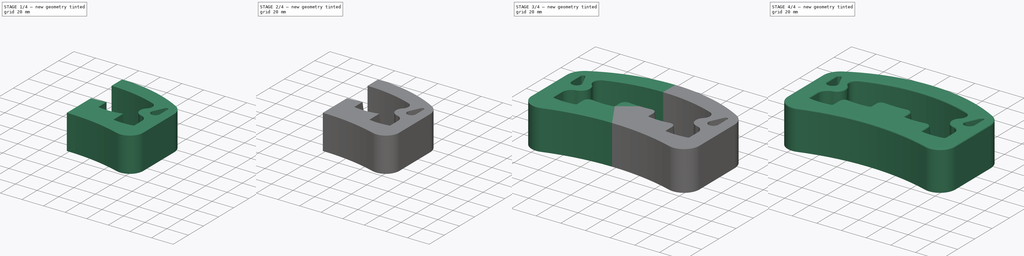
[diagram: build sequence overview — one tinted view per stage of 4, left to right]
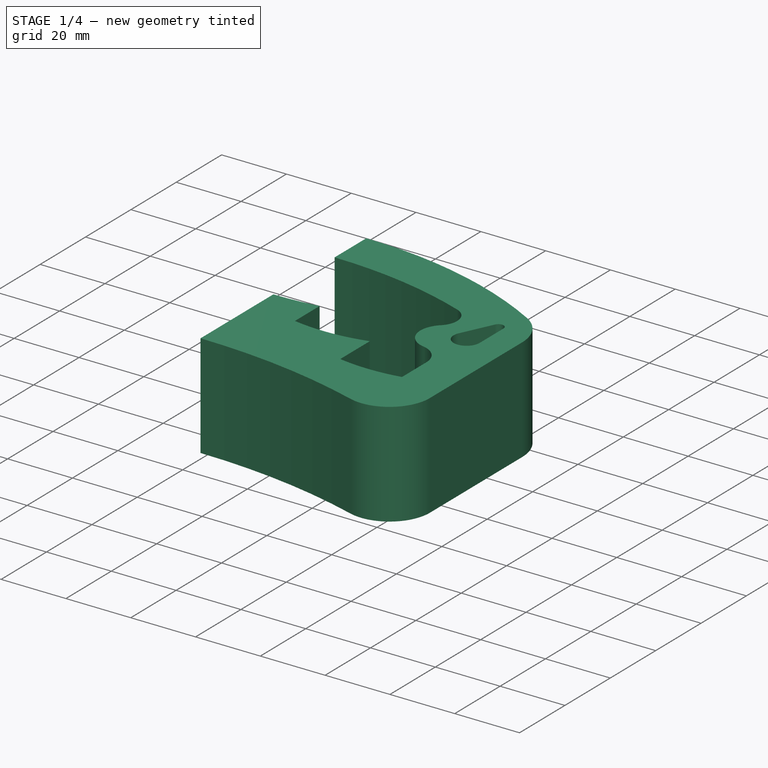
[diagram: stage 1 of 4 — iso view after this stage's code; geometry added in this stage tinted green]
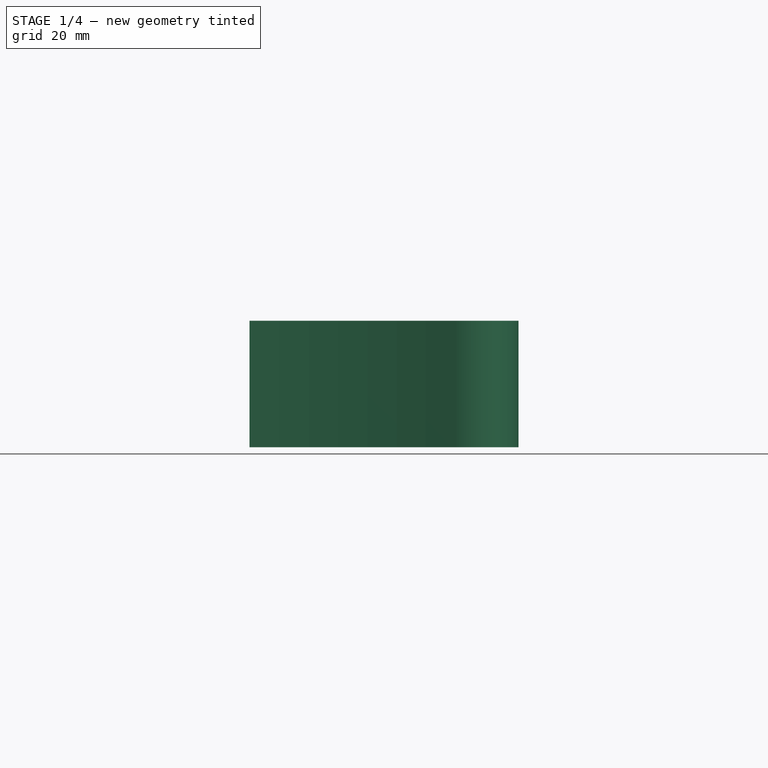
[diagram: stage 1 of 4 — front view after this stage's code; geometry added in this stage tinted green]
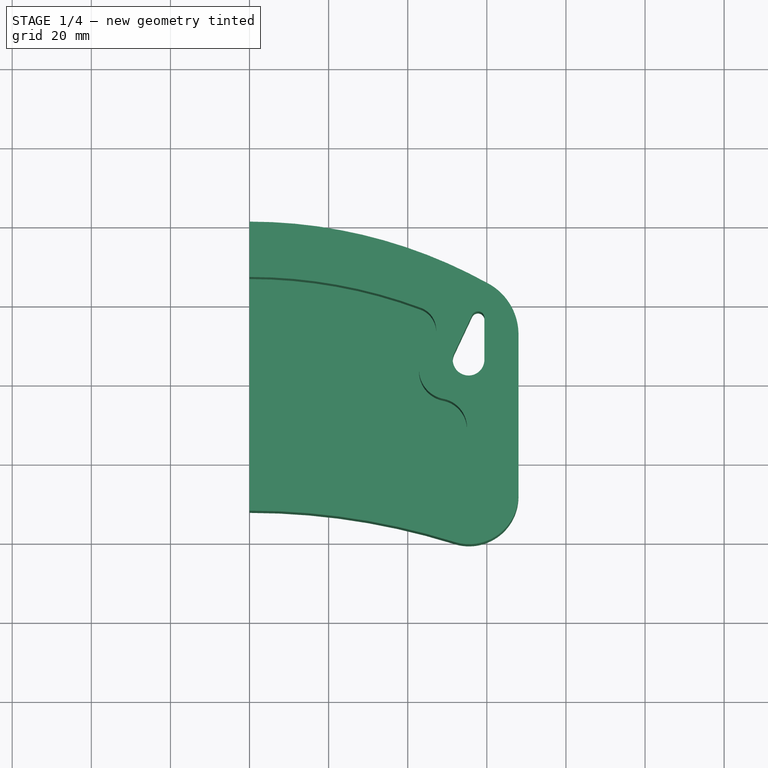
[diagram: stage 1 of 4 — top view after this stage's code; geometry added in this stage tinted green]
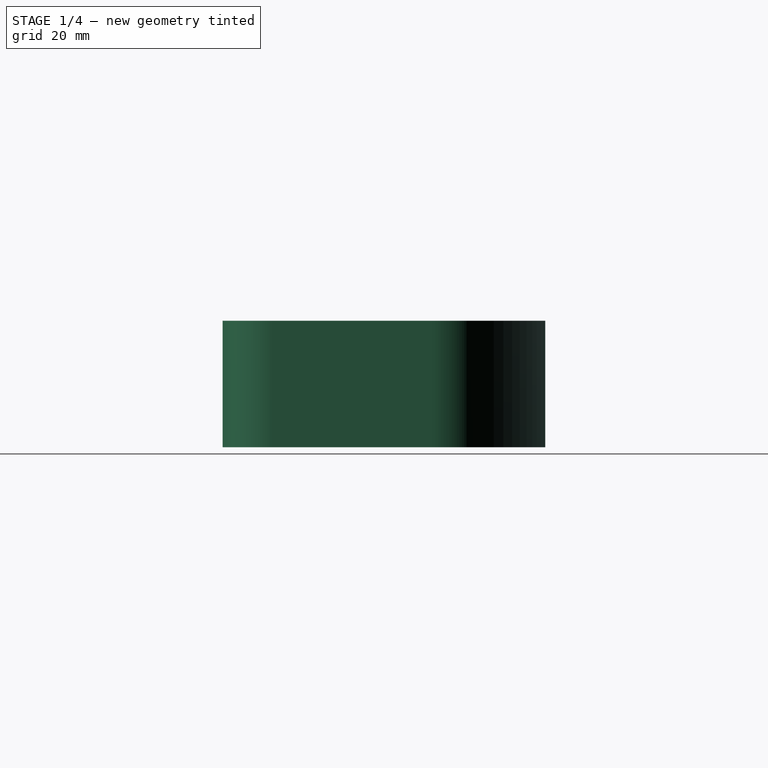
[diagram: stage 1 of 4 — right view after this stage's code; geometry added in this stage tinted green]
FCSTD DOCUMENT  (FreeCAD 1.1R39380 (Git))
Label: main de fer
License: All rights reserved
LicenseURL: https://en.wikipedia.org/wiki/All_rights_reserved
objects: PartDesign::Fillet×4, PartDesign::Draft×3, Sketcher::SketchObject×2, PartDesign::Pad×1, PartDesign::Pocket×1, PartDesign::Mirrored×1, PartDesign::Body×1
note: 34 computed .brp shape members not serialized (recipe doc carries the construction recipe); baked Part::Feature solids carry a one-line shape summary decoded from their .brp

FEATURE [Sketcher::SketchObject] Sketch
  ArcFitTolerance = 1e-06
  AttachmentSupport = -> [XY_Plane]
  ExternalTypes = [0]
  FullyConstrained = false
  MakeInternals = false
  MapMode = 5
  sketch-geometry (12):
    g0: LineSegment StartX=68 StartY=11.9198 StartZ=0 EndX=68 EndY=52.4848 EndZ=0
    g1: ArcOfCircle CenterX=2.13e-14 CenterY=-165.714 CenterZ=0 NormalX=0 NormalY=0 NormalZ=1 AngleXU=0 Radius=173.617 StartAngle=1.26791 EndAngle=1.5708
    g2: ArcOfCircle CenterX=0 CenterY=-43.203 CenterZ=0 NormalX=0 NormalY=0 NormalZ=1 AngleXU=0 Radius=124.203 StartAngle=1.06214 EndAngle=1.5708
    g3: ArcOfCircle CenterX=55.5117 CenterY=11.9198 CenterZ=0 NormalX=0 NormalY=0 NormalZ=1 AngleXU=0 Radius=12.4883 StartAngle=4.4095 EndAngle=6.28319
    g4: ArcOfCircle CenterX=53.3545 CenterY=52.4848 CenterZ=0 NormalX=0 NormalY=0 NormalZ=1 AngleXU=0 Radius=14.6455 StartAngle=0 EndAngle=1.06214
    g5: LineSegment StartX=56.2781 StartY=57.3751 StartZ=0 EndX=51.7626 EndY=47.7982 EndZ=0
    g6: LineSegment StartX=59.3877 StartY=56.6788 StartZ=0 EndX=59.3877 EndY=46.0908 EndZ=0
    g7: ArcOfCircle CenterX=55.384 CenterY=46.0908 CenterZ=0 NormalX=0 NormalY=0 NormalZ=1 AngleXU=0 Radius=4.00371 StartAngle=2.701 EndAngle=6.28319
    g8: ArcOfCircle CenterX=57.7549 CenterY=56.6788 CenterZ=0 NormalX=0 NormalY=0 NormalZ=1 AngleXU=0 Radius=1.63275 StartAngle=-1.8e-15 EndAngle=2.701
    g9: LineSegment [constr] StartX=8.64254 StartY=81 StartZ=0 EndX=-10.5317 EndY=81 EndZ=0
    g10: LineSegment [constr] StartX=-3.87588 StartY=7.90337 StartZ=0 EndX=5.636 EndY=7.90337 EndZ=0
    g11: LineSegment StartX=7.6e-15 StartY=81 StartZ=0 EndX=7.6e-15 EndY=7.90337 EndZ=0
  constraints (21):
    c: Vertical(g0)
    c: PointOnObject(g1,g-1)
    c: PointOnObject(g1,g-2)
    c: Tangent(g4,g2) = -1.5708
    c: Tangent(g4,g0) = -1.5708
    c: Tangent(g3,g0) = -1.5708
    c: Tangent(g3,g1) = 1.5708
    c: Vertical(g6)
    c: Tangent(g8,g5) = -1.5708
    c: Tangent(g7,g5) = -1.5708
    c: Tangent(g7,g6) = 1.5708
    c: Tangent(g8,g6) = 1.5708
    c: Distance(g-2,g0) = 68
    c: DistanceY(g-1,g2) = 81
    c: Horizontal(g9)
    c: Tangent(g2,g9) = -1.5708
    c: Horizontal(g10)
    c: Tangent(g1,g10) = 1.5708
    c: Coincident(g11,g2)
    c: Coincident(g11,g1)
    c: Vertical(g11)
FEATURE [PartDesign::Pad] Pad
  Direction = (0,0,1)
  Length = 32
  Length2 = 10
  Profile = -> Sketch
  ReferenceAxis = -> Sketch [N_Axis]
  Suppressed = false
  Type = 0
FEATURE [Sketcher::SketchObject] Sketch001
  ArcFitTolerance = 1e-06
  AttachmentOffset = pos=(0,0,32) rot=(0,0,1;0rad)
  AttachmentSupport = -> [XY_Plane]
  ExternalGeometry = -> [Sketch]
  ExternalTypes = [0]
  FullyConstrained = false
  MakeInternals = false
  MapMode = 5
  Placement = pos=(0,0,32) rot=(0,0,1;0rad)
  expr: .AttachmentOffset.Base.z = Pad.Length
  sketch-geometry (13):
    g0: ArcOfCircle CenterX=0 CenterY=-57.203 CenterZ=0 NormalX=0 NormalY=0 NormalZ=1 AngleXU=0 Radius=124.203 StartAngle=1.21485 EndAngle=1.5708
    g1: LineSegment [constr] StartX=-8.37039 StartY=67 StartZ=0 EndX=9.31481 EndY=67 EndZ=0
    g2: ArcOfCircle CenterX=22.7344 CenterY=80.8834 CenterZ=0 NormalX=0 NormalY=0 NormalZ=1 AngleXU=0 Radius=51.6001 StartAngle=4.53423 EndAngle=4.9734
    g3: ArcOfCircle CenterX=45.087 CenterY=69.7379 CenterZ=0 NormalX=0 NormalY=0 NormalZ=1 AngleXU=0 Radius=52.5212 StartAngle=4.53947 EndAngle=4.90227
    g4: ArcOfCircle CenterX=0 CenterY=133.057 CenterZ=0 NormalX=0 NormalY=0 NormalZ=1 AngleXU=0 Radius=93.0572 StartAngle=4.71239 EndAngle=4.85895
    g5: LineSegment StartX=13.59 StartY=30.1 StartZ=0 EndX=13.59 EndY=40.9977 EndZ=0
    g6: LineSegment StartX=36.05 StartY=18 StartZ=0 EndX=36.05 EndY=31.031 EndZ=0
    g7: LineSegment [constr] StartX=-4.82226 StartY=40 StartZ=0 EndX=3.66042 EndY=40 EndZ=0
    g8: ArcOfCircle CenterX=50.4088 CenterY=43.6173 CenterZ=0 NormalX=0 NormalY=0 NormalZ=1 AngleXU=0 Radius=7.55726 StartAngle=2.31789 EndAngle=4.51913
    g9: ArcOfCircle CenterX=41.1856 CenterY=53.5756 CenterZ=0 NormalX=0 NormalY=0 NormalZ=1 AngleXU=0 Radius=6.0161 StartAngle=5.45948 EndAngle=7.49803
    g10: ArcOfCircle CenterX=47.5209 CenterY=28.8608 CenterZ=0 NormalX=0 NormalY=0 NormalZ=1 AngleXU=0 Radius=7.47911 StartAngle=0 EndAngle=1.37753
    g11: LineSegment StartX=55 StartY=28.8608 StartZ=0 EndX=55 EndY=18.1607 EndZ=0
    g12: LineSegment StartX=0 StartY=67 StartZ=0 EndX=0 EndY=40 EndZ=0
  constraints (29):
    c: PointOnObject(g0,g-2)
    c: Equal(g0,g-3)
    c: Horizontal(g1)
    c: Tangent(g1,g0)
    c: PointOnObject(g4,g-2)
    c: Vertical(g5)
    c: Vertical(g6)
    c: Horizontal(g7)
    c: Distance(g4,g-1) = 40
    c: Tangent(g4,g7) = -1.5708
    c: DistanceY(g0,g-3) = 14
    c: Tangent(g8,g9) = 1.5708
    c: Tangent(g0,g9) = -1.5708
    c: Tangent(g10,g8) = 1.5708
    c: Vertical(g11)
    c: Coincident(g12,g0)
    c: Coincident(g12,g4)
    c: Distance(g2,g-1) = 30.1
    c: Distance(g3,g-1) = 18
    c: Tangent(g11,g10) = 1.5708
    c: DistanceX(g10) = 55
    c: DistanceX(g6) = 36.05
    c: DistanceX(g5) = 13.59
    c: Coincident(g3,g11)
    c: Coincident(g3,g6)
    c: Coincident(g2,g6)
    c: Coincident(g2,g5)
    c: Coincident(g4,g5)
    c: PointOnObject(g0,g-2)
FEATURE [PartDesign::Pocket] Pocket
  BaseFeature = -> Pad
  Direction = (0,0,-1)
  Length = 30
  Length2 = 5
  Profile = -> Sketch001
  ReferenceAxis = -> Sketch001 [N_Axis]
  Suppressed = false
  Type = 0
  expr: Length = 30 mm
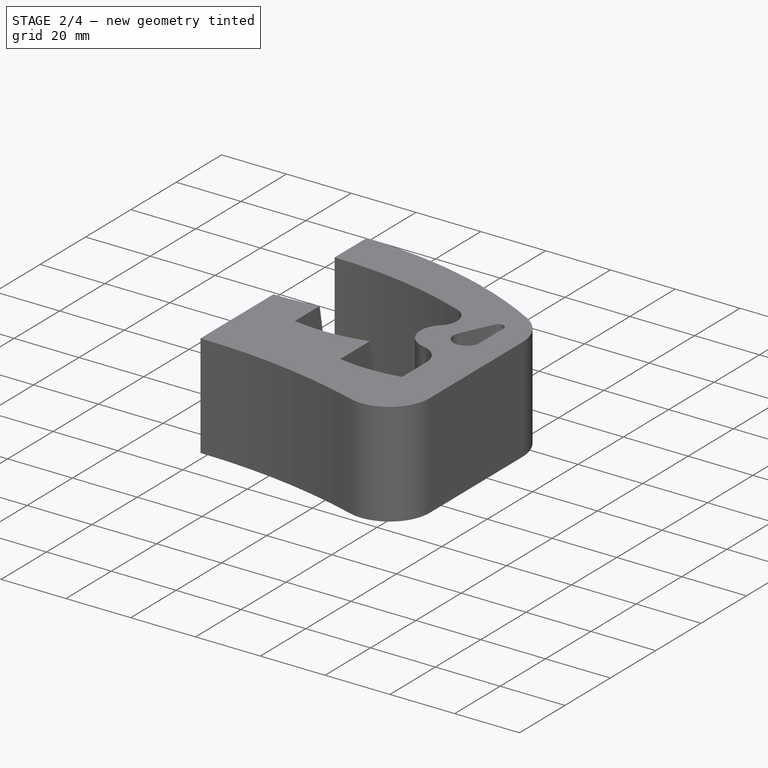
[diagram: stage 2 of 4 — iso view after this stage's code; geometry added in this stage tinted green]
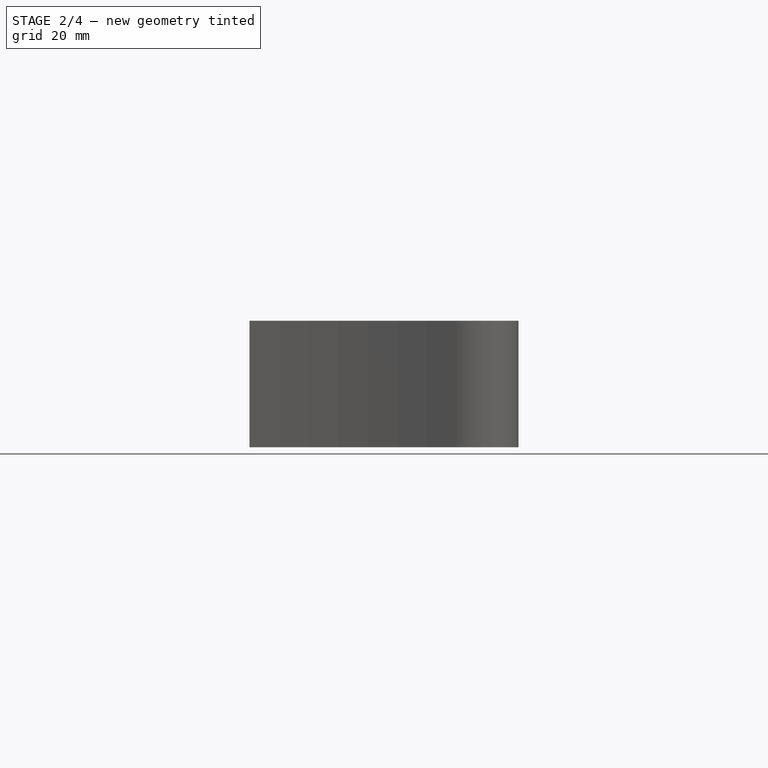
[diagram: stage 2 of 4 — front view after this stage's code; geometry added in this stage tinted green]
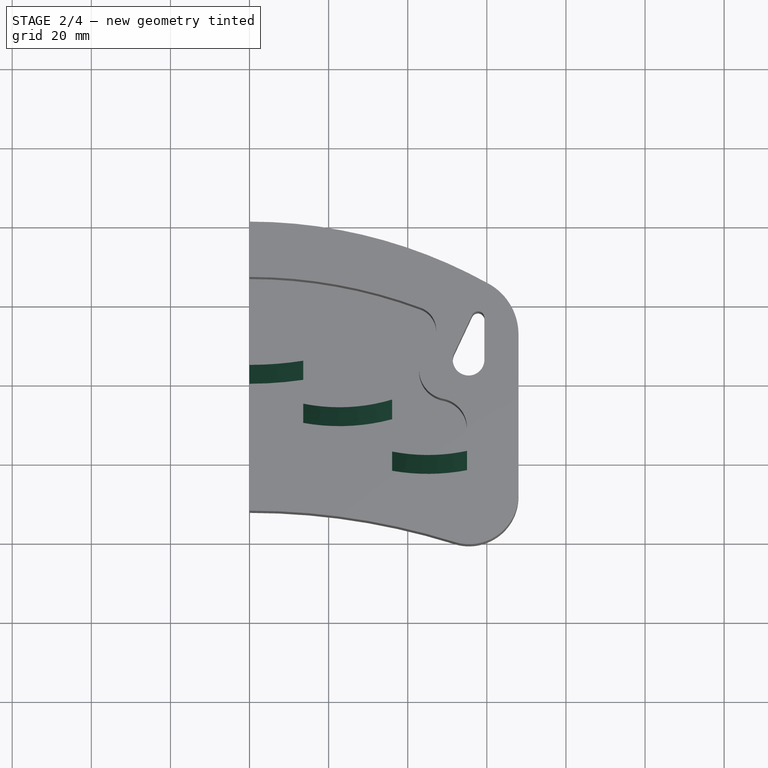
[diagram: stage 2 of 4 — top view after this stage's code; geometry added in this stage tinted green]
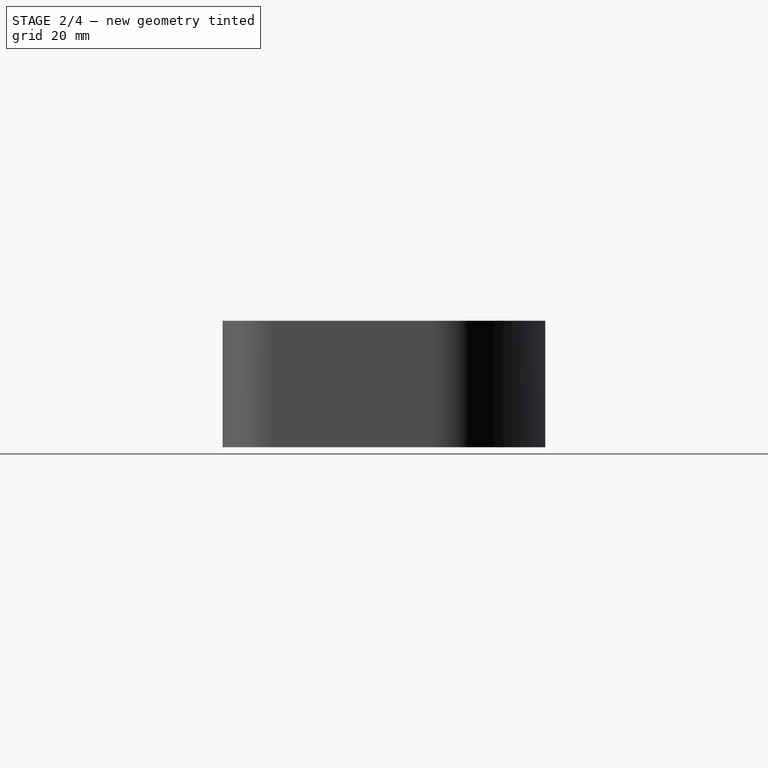
[diagram: stage 2 of 4 — right view after this stage's code; geometry added in this stage tinted green]
FEATURE [PartDesign::Draft] Draft
  Angle = 10
  Base = -> Pocket [Face17]
  BaseFeature = -> Pocket
  Refine = true
  SupportTransform = false
  Suppressed = false
FEATURE [PartDesign::Draft] Draft001
  Angle = 10
  Base = -> Draft [Face15]
  BaseFeature = -> Draft
  Refine = true
  SupportTransform = false
  Suppressed = false
FEATURE [PartDesign::Draft] Draft002
  Angle = 10
  Base = -> Draft001 [Face13]
  BaseFeature = -> Draft001
  Refine = true
  SupportTransform = false
  Suppressed = false
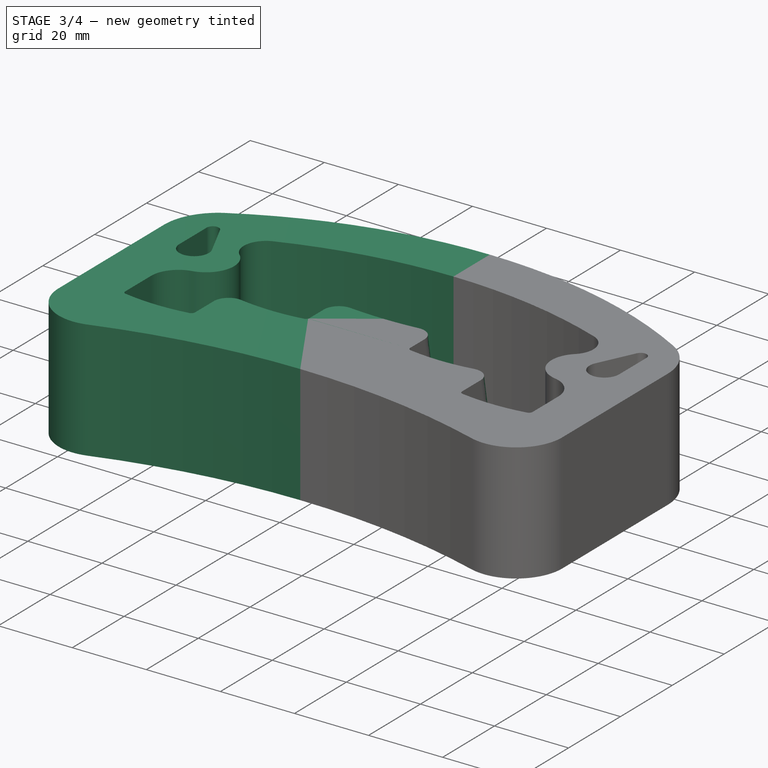
[diagram: stage 3 of 4 — iso view after this stage's code; geometry added in this stage tinted green]
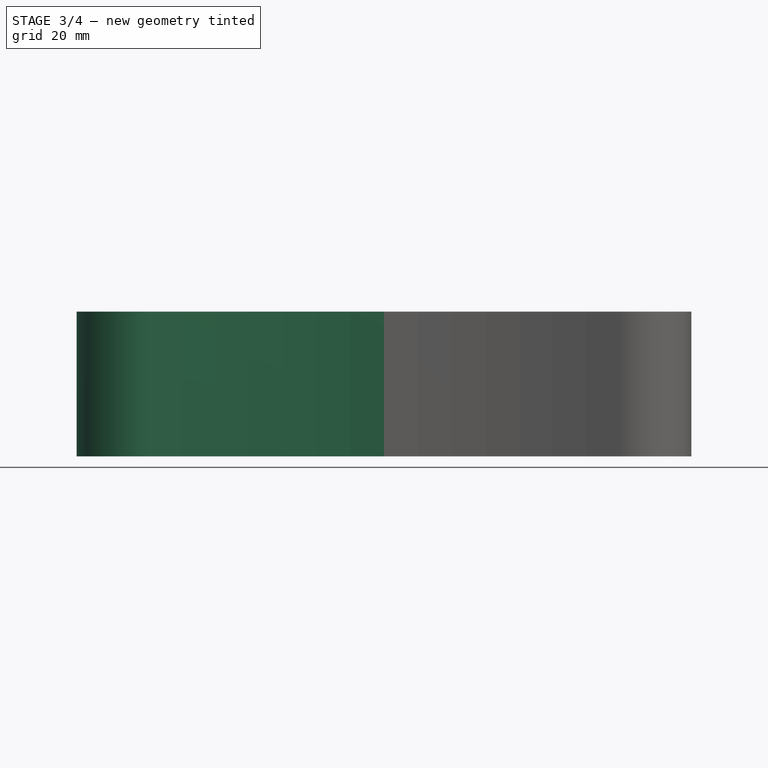
[diagram: stage 3 of 4 — front view after this stage's code; geometry added in this stage tinted green]
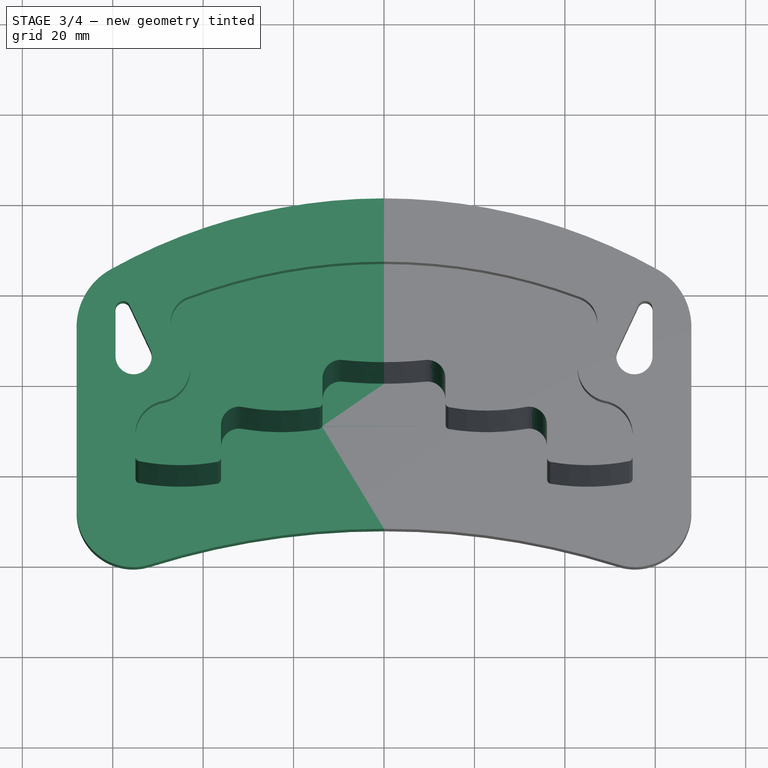
[diagram: stage 3 of 4 — top view after this stage's code; geometry added in this stage tinted green]
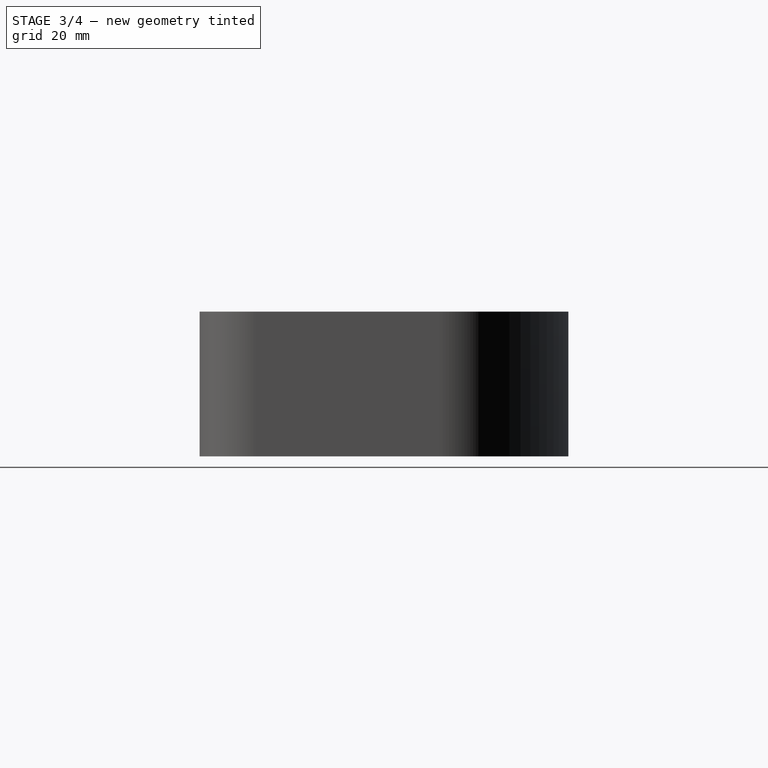
[diagram: stage 3 of 4 — right view after this stage's code; geometry added in this stage tinted green]
FEATURE [PartDesign::Fillet] Fillet
  Base = -> Draft002 [Edge53,Edge51,Edge47]
  BaseFeature = -> Draft002
  Radius = 1
  Refine = true
  SupportTransform = false
  Suppressed = false
  UseAllEdges = false
FEATURE [PartDesign::Fillet] Fillet001
  Base = -> Fillet [Edge32,Edge26]
  BaseFeature = -> Fillet
  Radius = 4
  Refine = true
  SupportTransform = false
  Suppressed = false
  UseAllEdges = false
FEATURE [PartDesign::Mirrored] Mirrored
  BaseFeature = -> Fillet001
  MirrorPlane = -> Sketch [V_Axis]
  Originals = -> [Pad,Pocket,Draft,Draft001,Draft002,Fillet,Fillet001]
  Refine = true
  Suppressed = false
  TransformMode = 0
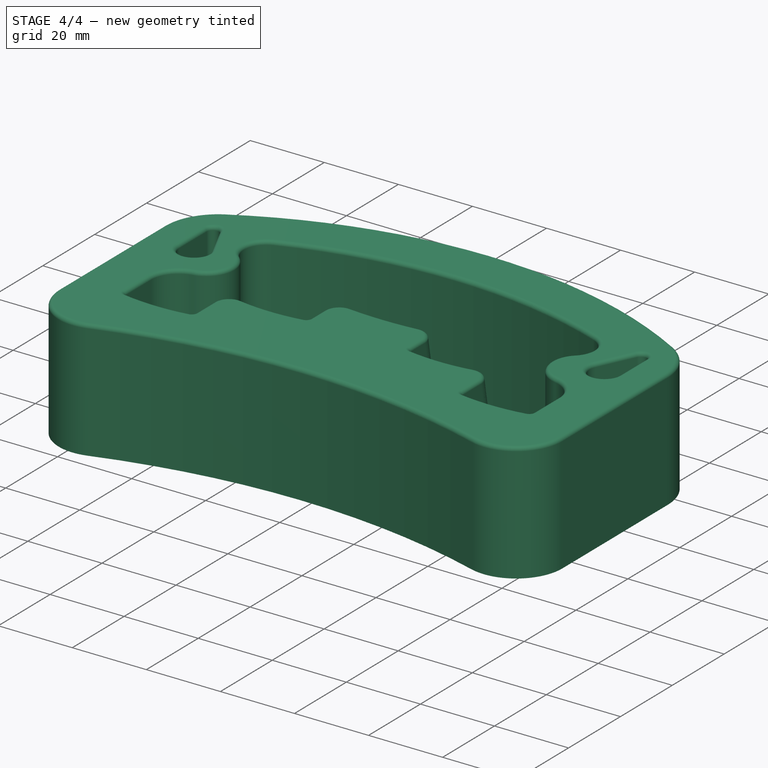
[diagram: stage 4 of 4 — iso view after this stage's code; geometry added in this stage tinted green]
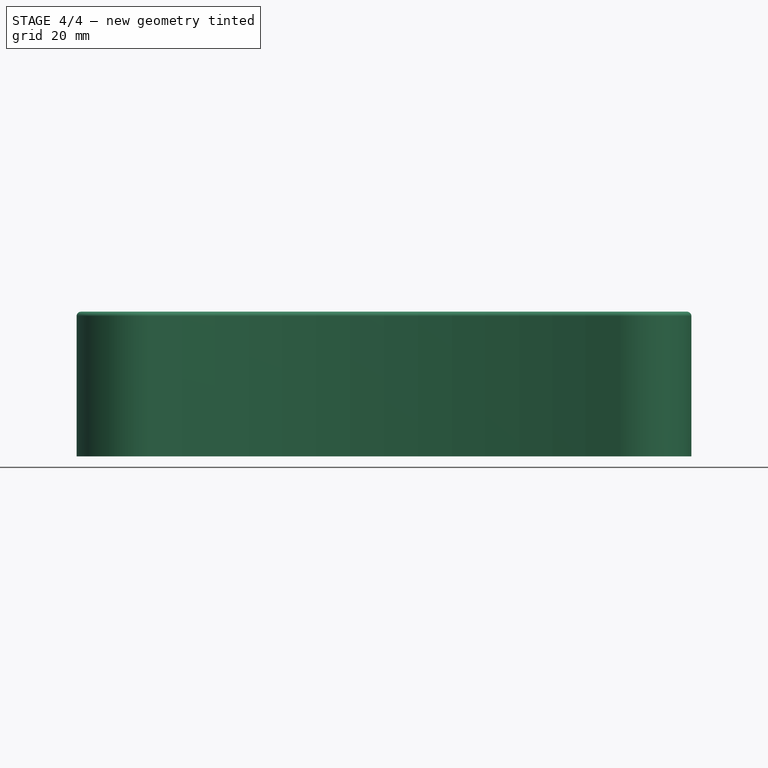
[diagram: stage 4 of 4 — front view after this stage's code; geometry added in this stage tinted green]
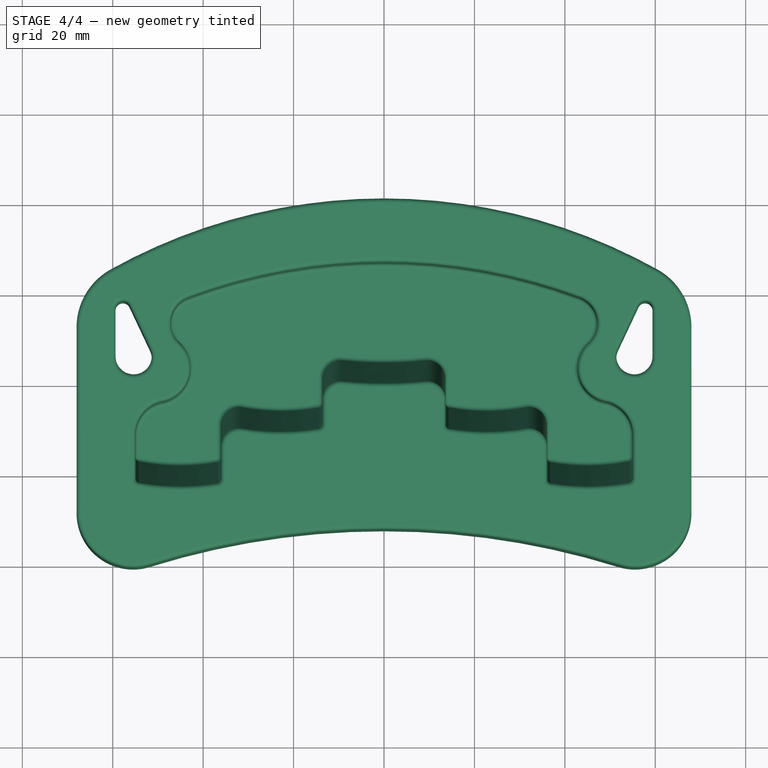
[diagram: stage 4 of 4 — top view after this stage's code; geometry added in this stage tinted green]
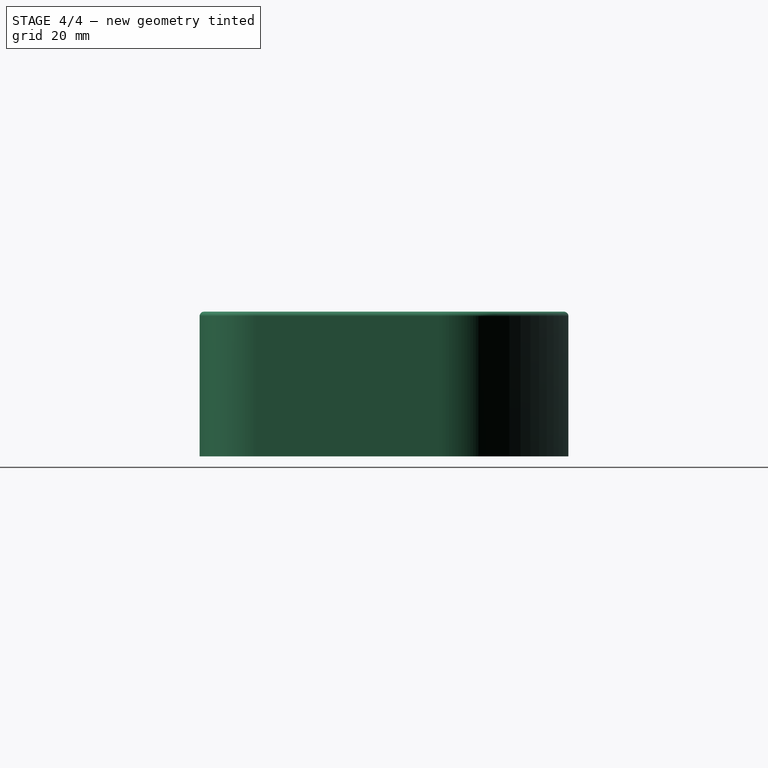
[diagram: stage 4 of 4 — right view after this stage's code; geometry added in this stage tinted green]
FEATURE [PartDesign::Fillet] Fillet002
  Base = -> Mirrored [Face42]
  BaseFeature = -> Mirrored
  Radius = 1
  Refine = true
  SupportTransform = false
  Suppressed = false
  UseAllEdges = false
FEATURE [PartDesign::Fillet] Fillet003
  Base = -> Fillet002 [Face4]
  BaseFeature = -> Fillet002
  Radius = 1
  Refine = true
  SupportTransform = false
  Suppressed = false
  UseAllEdges = false
FEATURE [PartDesign::Body] Body
  AllowCompound = false
  Group = -> [Sketch,Pad,Sketch001,Pocket,Draft,Draft001,Draft002,Fillet,Fillet001,Mirrored,Fillet002,Fillet003]
  Origin = -> Origin
  Tip = -> Fillet003
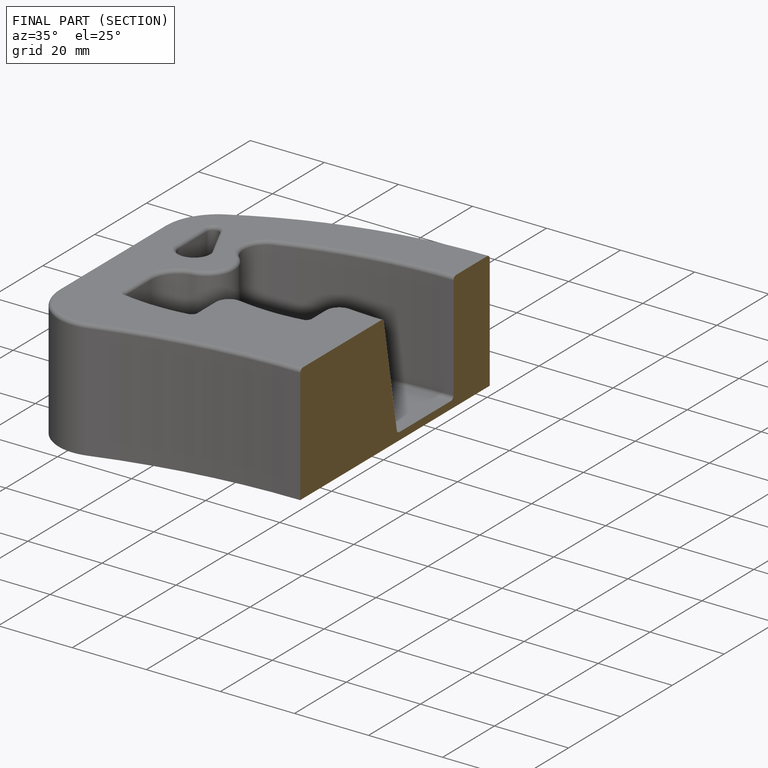
[diagram: finished part — half-section view (interior)]
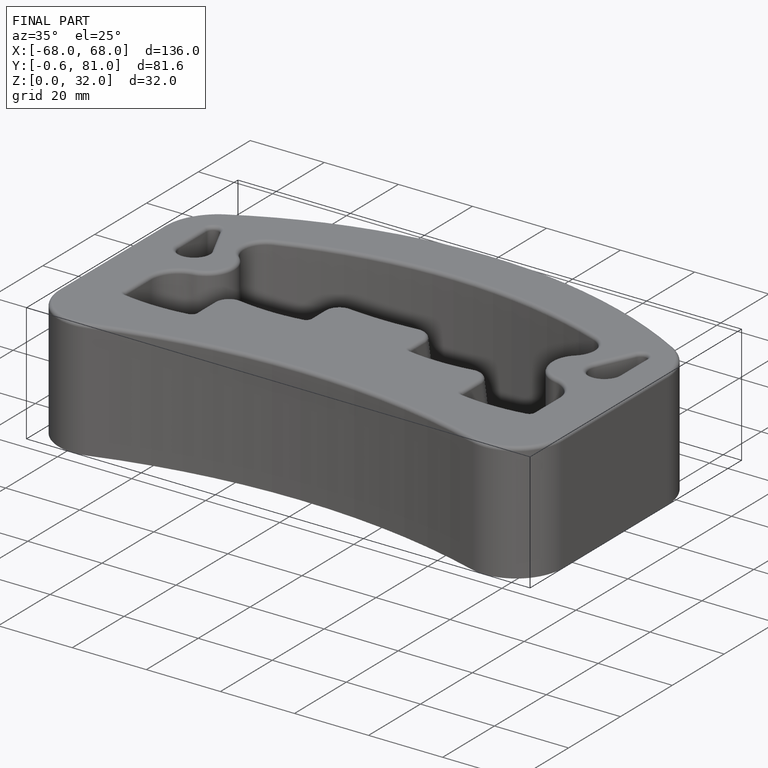
[diagram: finished part — iso view with bounding-box wireframe]
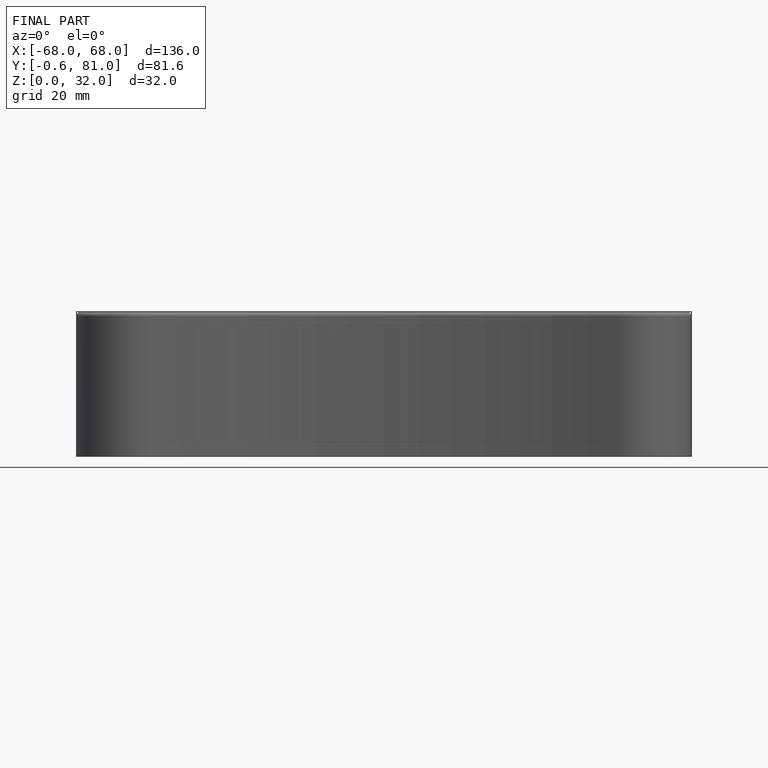
[diagram: finished part — front view with bounding-box wireframe]
